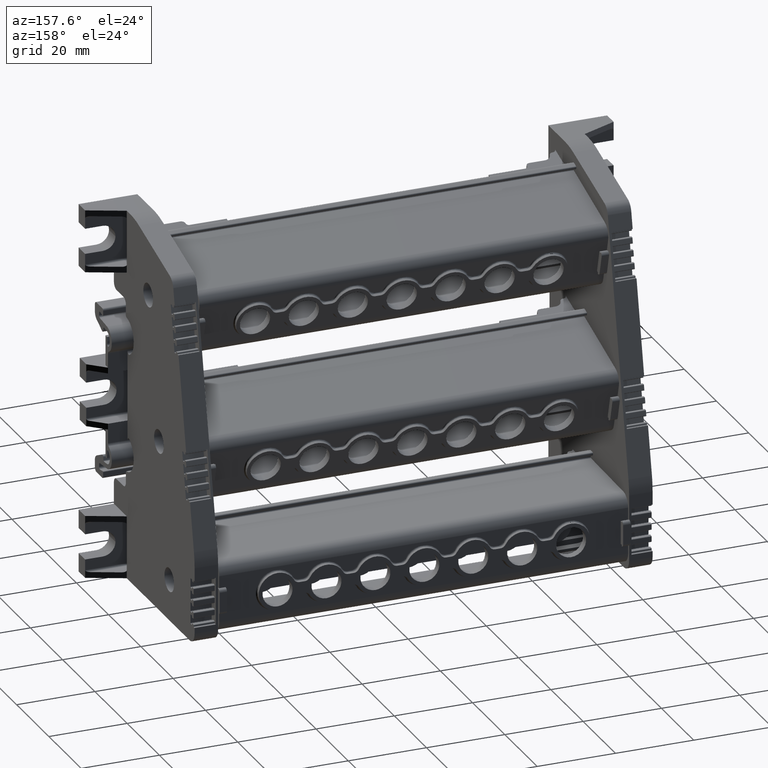
[diagram: clean part render]
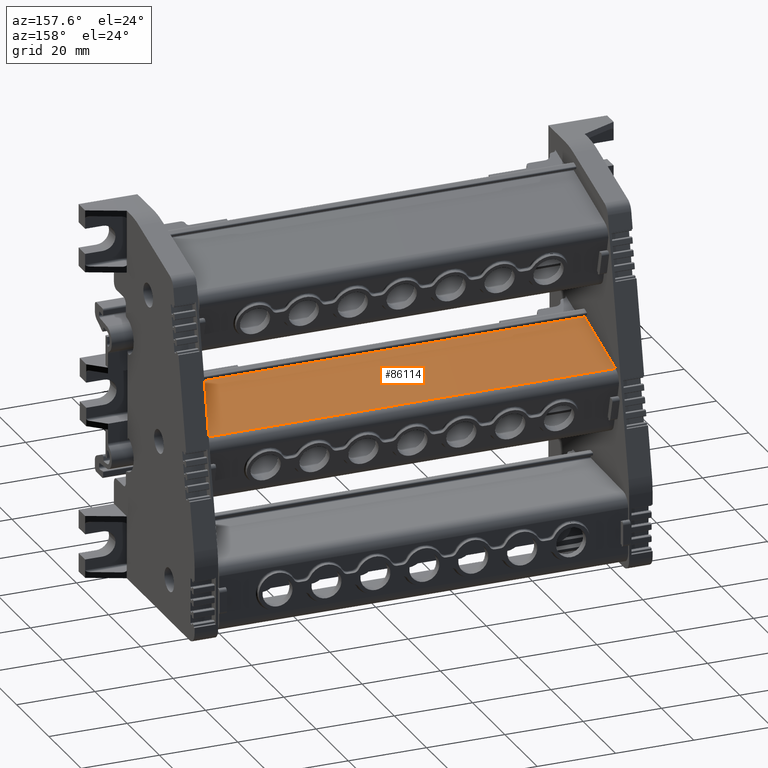
[diagram: same view with one face highlighted and labeled with its STEP entity id]
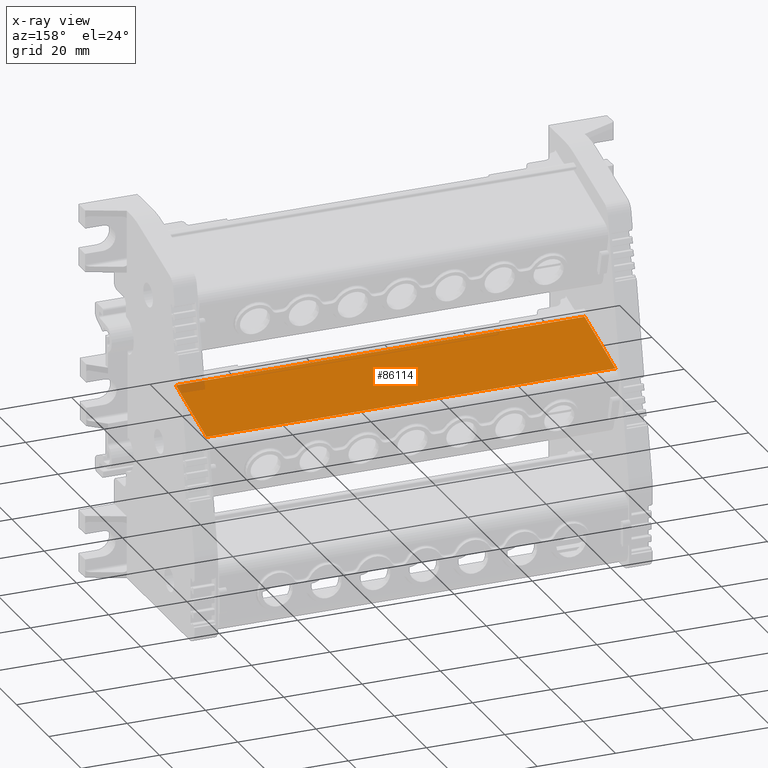
[diagram: x-ray of the same camera — body ghosted, the highlighted face saturated]
A machine part, auxiliary view. The second image highlights one B-rep face of the part: STEP entity #86114.
The next image is the same camera in x-ray: the body ghosted, the highlighted face saturated — about 1% of this face is hidden behind the body in this view.
In plain terms, the highlighted planar face has unit normal (-0, 0.2756, 0.9613).
Its self-contained STEP definition (entity closure, byte-faithful):
#260 = EDGE_CURVE ( 'NONE', #56044, #11698, #85402, .T. ) ;
#327 = EDGE_CURVE ( 'NONE', #56044, #12358, #71162, .T. ) ;
#11686 = VERTEX_POINT ( 'NONE', #75205 ) ;
#11698 = VERTEX_POINT ( 'NONE', #75075 ) ;
#12358 = VERTEX_POINT ( 'NONE', #72819 ) ;
#13590 = VECTOR ( 'NONE', #85423, 1000.000000000000200 ) ;
#13760 = VECTOR ( 'NONE', #71166, 1000.000000000000000 ) ;
#40756 = ORIENTED_EDGE ( 'NONE', *, *, #327, .T. ) ;
#40773 = ORIENTED_EDGE ( 'NONE', *, *, #260, .F. ) ;
#40805 = ORIENTED_EDGE ( 'NONE', *, *, #91673, .T. ) ;
#40806 = ORIENTED_EDGE ( 'NONE', *, *, #91691, .T. ) ;
#50545 = DIRECTION ( 'NONE',  ( 0.0000000000000000000, -0.9612618642708153900, 0.2756367687711426300 ) ) ;
#50591 = FACE_OUTER_BOUND ( 'NONE', #75819, .T. ) ;
#50593 = CARTESIAN_POINT ( 'NONE',  ( 43.67005696747475700, 273.0027413627995000, 7.211661682103999400 ) ) ;
#50608 = PLANE ( 'NONE',  #67339 ) ;
#50610 = DIRECTION ( 'NONE',  ( -3.119113818612185400E-015, 0.2756367687711426800, 0.9612618642708155000 ) ) ;
#56044 = VERTEX_POINT ( 'NONE', #69345 ) ;
#67339 = AXIS2_PLACEMENT_3D ( 'NONE', #50593, #50610, #50545 ) ;
#69345 = CARTESIAN_POINT ( 'NONE',  ( 43.67005696747480700, 281.0429748186843400, 4.906167152133348500 ) ) ;
#71162 = LINE ( 'NONE', #71172, #13760 ) ;
#71166 = DIRECTION ( 'NONE',  ( -1.000000000000000000, -8.597424543916827300E-016, -2.998285164152011300E-015 ) ) ;
#71172 = CARTESIAN_POINT ( 'NONE',  ( 43.67005696747475700, 281.0429748186843400, 4.906167152133369800 ) ) ;
#72819 = CARTESIAN_POINT ( 'NONE',  ( -60.79994303252512800, 281.0429748186847400, 4.906167152132915100 ) ) ;
#73910 = VECTOR ( 'NONE', #78693, 1000.000000000000000 ) ;
#73979 = VECTOR ( 'NONE', #78658, 1000.000000000000100 ) ;
#75075 = CARTESIAN_POINT ( 'NONE',  ( 43.67005696747464300, 261.9211592821904400, 10.38924688661878200 ) ) ;
#75205 = CARTESIAN_POINT ( 'NONE',  ( -60.79994303252524900, 261.9211592821908400, 10.38924688661835900 ) ) ;
#75819 = EDGE_LOOP ( 'NONE', ( #40773, #40756, #40805, #40806 ) ) ;
#78626 = LINE ( 'NONE', #78653, #73979 ) ;
#78653 = CARTESIAN_POINT ( 'NONE',  ( -60.79994303252513500, 273.0027413627993800, 7.211661682103686700 ) ) ;
#78658 = DIRECTION ( 'NONE',  ( 0.0000000000000000000, -0.9612618642708153900, 0.2756367687711426300 ) ) ;
#78693 = DIRECTION ( 'NONE',  ( 1.000000000000000000, 8.597424543916827300E-016, 2.998285164152011300E-015 ) ) ;
#78724 = LINE ( 'NONE', #78729, #73910 ) ;
#78729 = CARTESIAN_POINT ( 'NONE',  ( 43.67005696747475700, 261.9211592821909000, 10.38924688661869700 ) ) ;
#85386 = CARTESIAN_POINT ( 'NONE',  ( 43.67005696747480700, 281.0429748186843400, 4.906167152133322800 ) ) ;
#85402 = LINE ( 'NONE', #85386, #13590 ) ;
#85423 = DIRECTION ( 'NONE',  ( -9.766992792336179300E-015, -0.9612618642708153900, 0.2756367687711425700 ) ) ;
#86114 = ADVANCED_FACE ( 'NONE', ( #50591 ), #50608, .T. ) ;
#91673 = EDGE_CURVE ( 'NONE', #12358, #11686, #78626, .T. ) ;
#91691 = EDGE_CURVE ( 'NONE', #11686, #11698, #78724, .T. ) ;